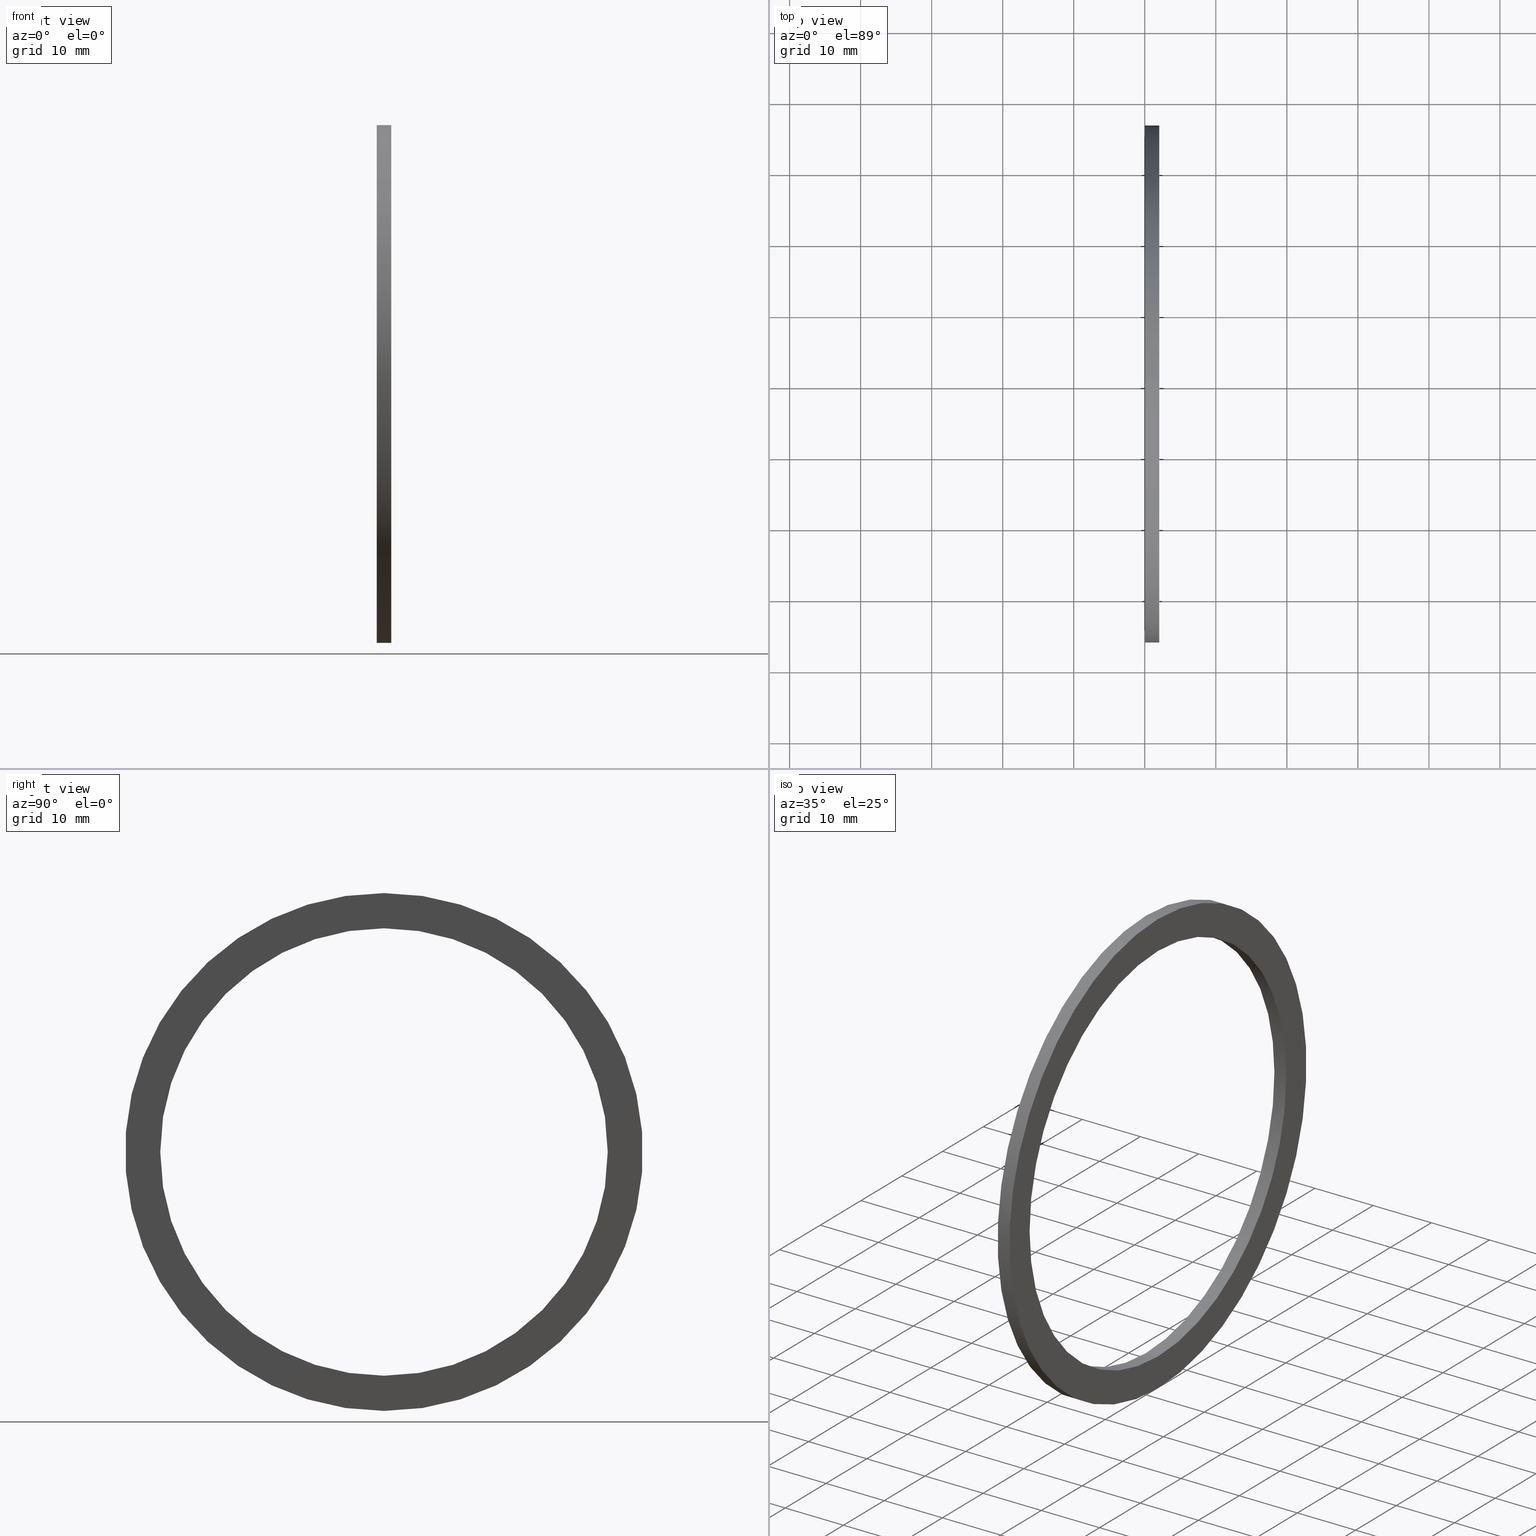
[diagram: canonical four-view strip — front | top / right | iso, engineering-drawing reading convention]
A machine part, canonical four-view strip (front | top / right | iso — engineering-drawing reading convention). The complete STEP part file that produces these views, byte-faithful:
ISO-10303-21;
HEADER;
FILE_DESCRIPTION (( 'STEP AP203' ),
    '1' );
FILE_NAME ('MS-63-NY.STEP',
    '2008-03-29T07:59:37',
    ( '' ),
    ( '' ),
    'SwSTEP 2.0',
    'SolidWorks 2007',
    '' );
FILE_SCHEMA (( 'CONFIG_CONTROL_DESIGN' ));
ENDSEC;

DATA;
#1 = EDGE_CURVE ( 'NONE', #12, #45, #117, .T. ) ;
#2 = ORIENTED_EDGE ( 'NONE', *, *, #50, .F. ) ;
#3 = ORIENTED_EDGE ( 'NONE', *, *, #1, .F. ) ;
#4 = ORIENTED_EDGE ( 'NONE', *, *, #52, .T. ) ;
#5 = CLOSED_SHELL ( 'NONE', ( #41, #13, #20, #51, #28, #26 ) ) ;
#6 = ORIENTED_EDGE ( 'NONE', *, *, #33, .T. ) ;
#7 = ORIENTED_EDGE ( 'NONE', *, *, #39, .F. ) ;
#8 = ORIENTED_EDGE ( 'NONE', *, *, #44, .T. ) ;
#9 = ORIENTED_EDGE ( 'NONE', *, *, #1, .T. ) ;
#10 = ORIENTED_EDGE ( 'NONE', *, *, #24, .F. ) ;
#11 = ORIENTED_EDGE ( 'NONE', *, *, #56, .T. ) ;
#12 = VERTEX_POINT ( 'NONE', #61 ) ;
#13 = ADVANCED_FACE ( 'NONE', ( #120 ), #90, .T. ) ;
#14 = EDGE_LOOP ( 'NONE', ( #40, #11, #38, #7 ) ) ;
#15 = MANIFOLD_SOLID_BREP ( 'NONE', #5 ) ;
#16 = VERTEX_POINT ( 'NONE', #146 ) ;
#17 = VERTEX_POINT ( 'NONE', #115 ) ;
#18 = EDGE_CURVE ( 'NONE', #16, #17, #88, .T. ) ;
#19 = EDGE_LOOP ( 'NONE', ( #8, #9 ) ) ;
#20 = ADVANCED_FACE ( 'NONE', ( #149, #110 ), #150, .T. ) ;
#21 = VERTEX_POINT ( 'NONE', #113 ) ;
#22 = VERTEX_POINT ( 'NONE', #118 ) ;
#23 = ORIENTED_EDGE ( 'NONE', *, *, #24, .T. ) ;
#24 = EDGE_CURVE ( 'NONE', #21, #57, #89, .T. ) ;
#25 = ORIENTED_EDGE ( 'NONE', *, *, #50, .T. ) ;
#26 = ADVANCED_FACE ( 'NONE', ( #85 ), #83, .F. ) ;
#27 = EDGE_LOOP ( 'NONE', ( #55, #34 ) ) ;
#28 = ADVANCED_FACE ( 'NONE', ( #141, #140 ), #71, .T. ) ;
#29 = EDGE_LOOP ( 'NONE', ( #53, #30, #47, #3 ) ) ;
#30 = ORIENTED_EDGE ( 'NONE', *, *, #54, .T. ) ;
#31 = EDGE_LOOP ( 'NONE', ( #25, #35 ) ) ;
#32 = ORIENTED_EDGE ( 'NONE', *, *, #33, .F. ) ;
#33 = EDGE_CURVE ( 'NONE', #22, #58, #106, .T. ) ;
#34 = ORIENTED_EDGE ( 'NONE', *, *, #54, .F. ) ;
#35 = ORIENTED_EDGE ( 'NONE', *, *, #43, .T. ) ;
#36 = ORIENTED_EDGE ( 'NONE', *, *, #60, .F. ) ;
#37 = EDGE_LOOP ( 'NONE', ( #42, #23, #59, #32 ) ) ;
#38 = ORIENTED_EDGE ( 'NONE', *, *, #44, .F. ) ;
#39 = EDGE_CURVE ( 'NONE', #16, #45, #137, .T. ) ;
#40 = ORIENTED_EDGE ( 'NONE', *, *, #18, .T. ) ;
#41 = ADVANCED_FACE ( 'NONE', ( #142 ), #82, .F. ) ;
#42 = ORIENTED_EDGE ( 'NONE', *, *, #43, .F. ) ;
#43 = EDGE_CURVE ( 'NONE', #21, #22, #77, .T. ) ;
#44 = EDGE_CURVE ( 'NONE', #45, #12, #101, .T. ) ;
#45 = VERTEX_POINT ( 'NONE', #97 ) ;
#46 = ORIENTED_EDGE ( 'NONE', *, *, #52, .F. ) ;
#47 = ORIENTED_EDGE ( 'NONE', *, *, #39, .T. ) ;
#48 = EDGE_LOOP ( 'NONE', ( #46, #36 ) ) ;
#49 = EDGE_LOOP ( 'NONE', ( #10, #2, #6, #4 ) ) ;
#50 = EDGE_CURVE ( 'NONE', #22, #21, #96, .T. ) ;
#51 = ADVANCED_FACE ( 'NONE', ( #127 ), #126, .T. ) ;
#52 = EDGE_CURVE ( 'NONE', #58, #57, #125, .T. ) ;
#53 = ORIENTED_EDGE ( 'NONE', *, *, #56, .F. ) ;
#54 = EDGE_CURVE ( 'NONE', #17, #16, #66, .T. ) ;
#55 = ORIENTED_EDGE ( 'NONE', *, *, #18, .F. ) ;
#56 = EDGE_CURVE ( 'NONE', #17, #12, #252, .T. ) ;
#57 = VERTEX_POINT ( 'NONE', #224 ) ;
#58 = VERTEX_POINT ( 'NONE', #186 ) ;
#59 = ORIENTED_EDGE ( 'NONE', *, *, #60, .T. ) ;
#60 = EDGE_CURVE ( 'NONE', #57, #58, #170, .T. ) ;
#61 = CARTESIAN_POINT ( 'NONE',  ( 0.0000000000000000000, 1.757368156776452000E-016, -1.435000000000000100 ) ) ;
#62 = DIRECTION ( 'NONE',  ( 0.0000000000000000000, 0.0000000000000000000, 1.000000000000000000 ) ) ;
#63 = DIRECTION ( 'NONE',  ( -1.000000000000000000, 0.0000000000000000000, 0.0000000000000000000 ) ) ;
#64 = CARTESIAN_POINT ( 'NONE',  ( 0.07999999999999996000, 0.0000000000000000000, 0.0000000000000000000 ) ) ;
#65 = AXIS2_PLACEMENT_3D ( 'NONE', #64, #63, #62 ) ;
#66 = CIRCLE ( 'NONE', #65, 1.435000000000000100 ) ;
#67 = DIRECTION ( 'NONE',  ( 0.0000000000000000000, 0.0000000000000000000, 1.000000000000000000 ) ) ;
#68 = DIRECTION ( 'NONE',  ( -1.000000000000000000, 0.0000000000000000000, 0.0000000000000000000 ) ) ;
#69 = CARTESIAN_POINT ( 'NONE',  ( 0.0000000000000000000, 0.0000000000000000000, 0.0000000000000000000 ) ) ;
#70 = AXIS2_PLACEMENT_3D ( 'NONE', #69, #68, #67 ) ;
#71 = PLANE ( 'NONE',  #105 ) ;
#72 = CARTESIAN_POINT ( 'NONE',  ( 0.08000000000000002900, -1.240000000000000000, 0.0000000000000000000 ) ) ;
#73 = DIRECTION ( 'NONE',  ( 0.0000000000000000000, 0.0000000000000000000, 1.000000000000000000 ) ) ;
#74 = DIRECTION ( 'NONE',  ( -1.000000000000000000, 0.0000000000000000000, 0.0000000000000000000 ) ) ;
#75 = CARTESIAN_POINT ( 'NONE',  ( 0.07999999999999996000, 0.0000000000000000000, 0.0000000000000000000 ) ) ;
#76 = AXIS2_PLACEMENT_3D ( 'NONE', #75, #74, #102 ) ;
#77 = CIRCLE ( 'NONE', #76, 1.240000000000000000 ) ;
#78 = CARTESIAN_POINT ( 'NONE',  ( 0.0000000000000000000, 0.0000000000000000000, 0.0000000000000000000 ) ) ;
#79 = DIRECTION ( 'NONE',  ( 0.0000000000000000000, 0.0000000000000000000, 1.000000000000000000 ) ) ;
#80 = DIRECTION ( 'NONE',  ( -1.000000000000000000, 0.0000000000000000000, 0.0000000000000000000 ) ) ;
#81 = AXIS2_PLACEMENT_3D ( 'NONE', #133, #80, #79 ) ;
#82 = CYLINDRICAL_SURFACE ( 'NONE', #81, 1.240000000000000000 ) ;
#83 = CYLINDRICAL_SURFACE ( 'NONE', #84, 1.240000000000000000 ) ;
#84 = AXIS2_PLACEMENT_3D ( 'NONE', #139, #138, #73 ) ;
#85 = FACE_OUTER_BOUND ( 'NONE', #49, .T. ) ;
#86 = DIRECTION ( 'NONE',  ( -1.000000000000000000, 0.0000000000000000000, 0.0000000000000000000 ) ) ;
#87 = AXIS2_PLACEMENT_3D ( 'NONE', #95, #94, #93 ) ;
#88 = CIRCLE ( 'NONE', #87, 1.435000000000000100 ) ;
#89 = LINE ( 'NONE', #92, #91 ) ;
#90 = CYLINDRICAL_SURFACE ( 'NONE', #114, 1.435000000000000100 ) ;
#91 = VECTOR ( 'NONE', #86, 39.37007874015748100 ) ;
#92 = CARTESIAN_POINT ( 'NONE',  ( -1.721125226614714300, 1.518562030942717800E-016, -1.240000000000000000 ) ) ;
#93 = DIRECTION ( 'NONE',  ( 0.0000000000000000000, 0.0000000000000000000, 1.000000000000000000 ) ) ;
#94 = DIRECTION ( 'NONE',  ( -1.000000000000000000, 0.0000000000000000000, 0.0000000000000000000 ) ) ;
#95 = CARTESIAN_POINT ( 'NONE',  ( 0.07999999999999996000, 0.0000000000000000000, 0.0000000000000000000 ) ) ;
#96 = CIRCLE ( 'NONE', #131, 1.240000000000000000 ) ;
#97 = CARTESIAN_POINT ( 'NONE',  ( 0.0000000000000000000, 0.0000000000000000000, 1.435000000000000100 ) ) ;
#98 = DIRECTION ( 'NONE',  ( 0.0000000000000000000, 0.0000000000000000000, 1.000000000000000000 ) ) ;
#99 = DIRECTION ( 'NONE',  ( -1.000000000000000000, 0.0000000000000000000, 0.0000000000000000000 ) ) ;
#100 = AXIS2_PLACEMENT_3D ( 'NONE', #78, #99, #98 ) ;
#101 = CIRCLE ( 'NONE', #100, 1.435000000000000100 ) ;
#102 = DIRECTION ( 'NONE',  ( 0.0000000000000000000, 0.0000000000000000000, 1.000000000000000000 ) ) ;
#103 = DIRECTION ( 'NONE',  ( 0.0000000000000000000, 0.0000000000000000000, -1.000000000000000000 ) ) ;
#104 = DIRECTION ( 'NONE',  ( 1.000000000000000000, 0.0000000000000000000, 0.0000000000000000000 ) ) ;
#105 = AXIS2_PLACEMENT_3D ( 'NONE', #72, #104, #103 ) ;
#106 = LINE ( 'NONE', #145, #144 ) ;
#107 = DIRECTION ( 'NONE',  ( -1.000000000000000000, 0.0000000000000000000, 0.0000000000000000000 ) ) ;
#108 = CARTESIAN_POINT ( 'NONE',  ( -1.721125226614714300, 0.0000000000000000000, 0.0000000000000000000 ) ) ;
#109 = AXIS2_PLACEMENT_3D ( 'NONE', #112, #111, #119 ) ;
#110 = FACE_BOUND ( 'NONE', #48, .T. ) ;
#111 = DIRECTION ( 'NONE',  ( -1.000000000000000000, 0.0000000000000000000, 0.0000000000000000000 ) ) ;
#112 = CARTESIAN_POINT ( 'NONE',  ( 4.316737397223879900E-017, -1.240000000000000000, 0.0000000000000000000 ) ) ;
#113 = CARTESIAN_POINT ( 'NONE',  ( 0.07999999999999996000, 1.518562030942717800E-016, -1.240000000000000000 ) ) ;
#114 = AXIS2_PLACEMENT_3D ( 'NONE', #108, #107, #147 ) ;
#115 = CARTESIAN_POINT ( 'NONE',  ( 0.07999999999999996000, 1.757368156776452000E-016, -1.435000000000000100 ) ) ;
#116 = AXIS2_PLACEMENT_3D ( 'NONE', #132, #151, #148 ) ;
#117 = CIRCLE ( 'NONE', #116, 1.435000000000000100 ) ;
#118 = CARTESIAN_POINT ( 'NONE',  ( 0.07999999999999996000, 0.0000000000000000000, 1.240000000000000000 ) ) ;
#119 = DIRECTION ( 'NONE',  ( 0.0000000000000000000, 0.0000000000000000000, 1.000000000000000000 ) ) ;
#120 = FACE_OUTER_BOUND ( 'NONE', #14, .T. ) ;
#121 = DIRECTION ( 'NONE',  ( 0.0000000000000000000, 0.0000000000000000000, 1.000000000000000000 ) ) ;
#122 = DIRECTION ( 'NONE',  ( -1.000000000000000000, 0.0000000000000000000, 0.0000000000000000000 ) ) ;
#123 = CARTESIAN_POINT ( 'NONE',  ( -1.721125226614714300, 0.0000000000000000000, 0.0000000000000000000 ) ) ;
#124 = AXIS2_PLACEMENT_3D ( 'NONE', #123, #122, #121 ) ;
#125 = CIRCLE ( 'NONE', #70, 1.240000000000000000 ) ;
#126 = CYLINDRICAL_SURFACE ( 'NONE', #124, 1.435000000000000100 ) ;
#127 = FACE_OUTER_BOUND ( 'NONE', #29, .T. ) ;
#128 = DIRECTION ( 'NONE',  ( 0.0000000000000000000, 0.0000000000000000000, 1.000000000000000000 ) ) ;
#129 = DIRECTION ( 'NONE',  ( -1.000000000000000000, 0.0000000000000000000, 0.0000000000000000000 ) ) ;
#130 = CARTESIAN_POINT ( 'NONE',  ( 0.07999999999999996000, 0.0000000000000000000, 0.0000000000000000000 ) ) ;
#131 = AXIS2_PLACEMENT_3D ( 'NONE', #130, #129, #128 ) ;
#132 = CARTESIAN_POINT ( 'NONE',  ( 0.0000000000000000000, 0.0000000000000000000, 0.0000000000000000000 ) ) ;
#133 = CARTESIAN_POINT ( 'NONE',  ( -1.721125226614714300, 0.0000000000000000000, 0.0000000000000000000 ) ) ;
#134 = DIRECTION ( 'NONE',  ( -1.000000000000000000, 0.0000000000000000000, 0.0000000000000000000 ) ) ;
#135 = VECTOR ( 'NONE', #134, 39.37007874015748100 ) ;
#136 = CARTESIAN_POINT ( 'NONE',  ( -1.721125226614714300, 0.0000000000000000000, 1.435000000000000100 ) ) ;
#137 = LINE ( 'NONE', #136, #135 ) ;
#138 = DIRECTION ( 'NONE',  ( -1.000000000000000000, 0.0000000000000000000, 0.0000000000000000000 ) ) ;
#139 = CARTESIAN_POINT ( 'NONE',  ( -1.721125226614714300, 0.0000000000000000000, 0.0000000000000000000 ) ) ;
#140 = FACE_OUTER_BOUND ( 'NONE', #27, .T. ) ;
#141 = FACE_BOUND ( 'NONE', #31, .T. ) ;
#142 = FACE_OUTER_BOUND ( 'NONE', #37, .T. ) ;
#143 = DIRECTION ( 'NONE',  ( -1.000000000000000000, 0.0000000000000000000, 0.0000000000000000000 ) ) ;
#144 = VECTOR ( 'NONE', #143, 39.37007874015748100 ) ;
#145 = CARTESIAN_POINT ( 'NONE',  ( -1.721125226614714300, 0.0000000000000000000, 1.240000000000000000 ) ) ;
#146 = CARTESIAN_POINT ( 'NONE',  ( 0.07999999999999996000, 0.0000000000000000000, 1.435000000000000100 ) ) ;
#147 = DIRECTION ( 'NONE',  ( 0.0000000000000000000, 0.0000000000000000000, 1.000000000000000000 ) ) ;
#148 = DIRECTION ( 'NONE',  ( 0.0000000000000000000, 0.0000000000000000000, 1.000000000000000000 ) ) ;
#149 = FACE_OUTER_BOUND ( 'NONE', #19, .T. ) ;
#150 = PLANE ( 'NONE',  #109 ) ;
#151 = DIRECTION ( 'NONE',  ( -1.000000000000000000, 0.0000000000000000000, 0.0000000000000000000 ) ) ;
#152 =( CONVERSION_BASED_UNIT ( 'INCH', #245 ) LENGTH_UNIT ( ) NAMED_UNIT ( #168 ) );
#153 = DIRECTION ( 'NONE',  ( 0.0000000000000000000, 0.0000000000000000000, 1.000000000000000000 ) ) ;
#154 = DIRECTION ( 'NONE',  ( -1.000000000000000000, 0.0000000000000000000, 0.0000000000000000000 ) ) ;
#155 = LOCAL_TIME ( 13, 29, 37.00000000000000000, #156 ) ;
#156 = COORDINATED_UNIVERSAL_TIME_OFFSET ( 5, 30, .AHEAD. ) ;
#157 = APPROVAL_PERSON_ORGANIZATION ( #161, #159, #158 ) ;
#158 = APPROVAL_ROLE ( '' ) ;
#159 = APPROVAL ( #160, 'UNSPECIFIED' ) ;
#160 = APPROVAL_STATUS ( 'not_yet_approved' ) ;
#161 = PERSON_AND_ORGANIZATION ( #166, #165 ) ;
#162 = PRODUCT_DEFINITION ( 'UNKNOWN', '', #172, #208 ) ;
#163 = PERSON_AND_ORGANIZATION_ROLE ( 'design_owner' ) ;
#164 = PERSON_AND_ORGANIZATION ( #166, #165 ) ;
#165 = ORGANIZATION ( 'UNSPECIFIED', 'UNSPECIFIED', '' ) ;
#166 = PERSON ( 'UNSPECIFIED', 'UNSPECIFIED', 'UNSPECIFIED', ('UNSPECIFIED'), ('UNSPECIFIED'), ('UNSPECIFIED') ) ;
#167 = CARTESIAN_POINT ( 'NONE',  ( 0.0000000000000000000, 0.0000000000000000000, 0.0000000000000000000 ) ) ;
#168 = DIMENSIONAL_EXPONENTS ( 1.000000000000000000, 0.0000000000000000000, 0.0000000000000000000, 0.0000000000000000000, 0.0000000000000000000, 0.0000000000000000000, 0.0000000000000000000 ) ;
#169 = AXIS2_PLACEMENT_3D ( 'NONE', #182, #154, #153 ) ;
#170 = CIRCLE ( 'NONE', #169, 1.240000000000000000 ) ;
#171 = VECTOR ( 'NONE', #187, 39.37007874015748100 ) ;
#172 = PRODUCT_DEFINITION_FORMATION_WITH_SPECIFIED_SOURCE ( 'ANY', '', #240, .NOT_KNOWN. ) ;
#173 = CC_DESIGN_DATE_AND_TIME_ASSIGNMENT ( #228, #174, ( #162 ) ) ;
#174 = DATE_TIME_ROLE ( 'creation_date' ) ;
#175 = CALENDAR_DATE ( 2008, 29, 3 ) ;
#176 =( NAMED_UNIT ( * ) PLANE_ANGLE_UNIT ( ) SI_UNIT ( $, .RADIAN. ) );
#177 = PERSON_AND_ORGANIZATION ( #166, #165 ) ;
#178 = CC_DESIGN_APPROVAL ( #159, ( #162 ) ) ;
#179 = APPROVAL_DATE_TIME ( #180, #159 ) ;
#180 = DATE_AND_TIME ( #181, #155 ) ;
#181 = CALENDAR_DATE ( 2008, 29, 3 ) ;
#182 = CARTESIAN_POINT ( 'NONE',  ( 0.0000000000000000000, 0.0000000000000000000, 0.0000000000000000000 ) ) ;
#183 = CARTESIAN_POINT ( 'NONE',  ( -1.721125226614714300, 1.757368156776452000E-016, -1.435000000000000100 ) ) ;
#184 = SHAPE_DEFINITION_REPRESENTATION ( #226, #246 ) ;
#185 = DIRECTION ( 'NONE',  ( 1.000000000000000000, 0.0000000000000000000, 0.0000000000000000000 ) ) ;
#186 = CARTESIAN_POINT ( 'NONE',  ( 0.0000000000000000000, 0.0000000000000000000, 1.240000000000000000 ) ) ;
#187 = DIRECTION ( 'NONE',  ( -1.000000000000000000, 0.0000000000000000000, 0.0000000000000000000 ) ) ;
#188 = AXIS2_PLACEMENT_3D ( 'NONE', #167, #222, #185 ) ;
#189 = CC_DESIGN_SECURITY_CLASSIFICATION ( #249, ( #172 ) ) ;
#190 = CC_DESIGN_APPROVAL ( #198, ( #249 ) ) ;
#191 = APPROVAL_DATE_TIME ( #192, #198 ) ;
#192 = DATE_AND_TIME ( #193, #194 ) ;
#193 = CALENDAR_DATE ( 2008, 29, 3 ) ;
#194 = LOCAL_TIME ( 13, 29, 37.00000000000000000, #195 ) ;
#195 = COORDINATED_UNIVERSAL_TIME_OFFSET ( 5, 30, .AHEAD. ) ;
#196 = APPROVAL_PERSON_ORGANIZATION ( #200, #198, #197 ) ;
#197 = APPROVAL_ROLE ( '' ) ;
#198 = APPROVAL ( #199, 'UNSPECIFIED' ) ;
#199 = APPROVAL_STATUS ( 'not_yet_approved' ) ;
#200 = PERSON_AND_ORGANIZATION ( #166, #165 ) ;
#201 = CC_DESIGN_DATE_AND_TIME_ASSIGNMENT ( #203, #202, ( #249 ) ) ;
#202 = DATE_TIME_ROLE ( 'classification_date' ) ;
#203 = DATE_AND_TIME ( #204, #205 ) ;
#204 = CALENDAR_DATE ( 2008, 29, 3 ) ;
#205 = LOCAL_TIME ( 13, 29, 37.00000000000000000, #206 ) ;
#206 = COORDINATED_UNIVERSAL_TIME_OFFSET ( 5, 30, .AHEAD. ) ;
#207 = CC_DESIGN_PERSON_AND_ORGANIZATION_ASSIGNMENT ( #248, #247, ( #249 ) ) ;
#208 = DESIGN_CONTEXT ( 'detailed design', #210, 'design' ) ;
#209 = APPLICATION_PROTOCOL_DEFINITION ( 'international standard', 'config_control_design', 1994, #210 ) ;
#210 = APPLICATION_CONTEXT ( 'configuration controlled 3d designs of mechanical parts and assemblies' ) ;
#211 = CC_DESIGN_PERSON_AND_ORGANIZATION_ASSIGNMENT ( #164, #163, ( #240 ) ) ;
#212 = APPROVAL_DATE_TIME ( #213, #219 ) ;
#213 = DATE_AND_TIME ( #214, #215 ) ;
#214 = CALENDAR_DATE ( 2008, 29, 3 ) ;
#215 = LOCAL_TIME ( 13, 29, 37.00000000000000000, #216 ) ;
#216 = COORDINATED_UNIVERSAL_TIME_OFFSET ( 5, 30, .AHEAD. ) ;
#217 = APPROVAL_PERSON_ORGANIZATION ( #221, #219, #218 ) ;
#218 = APPROVAL_ROLE ( '' ) ;
#219 = APPROVAL ( #220, 'UNSPECIFIED' ) ;
#220 = APPROVAL_STATUS ( 'not_yet_approved' ) ;
#221 = PERSON_AND_ORGANIZATION ( #166, #165 ) ;
#222 = DIRECTION ( 'NONE',  ( 0.0000000000000000000, 0.0000000000000000000, 1.000000000000000000 ) ) ;
#223 =( LENGTH_UNIT ( ) NAMED_UNIT ( * ) SI_UNIT ( $, .METRE. ) );
#224 = CARTESIAN_POINT ( 'NONE',  ( 0.0000000000000000000, 1.518562030942717800E-016, -1.240000000000000000 ) ) ;
#225 =( GEOMETRIC_REPRESENTATION_CONTEXT ( 3 ) GLOBAL_UNCERTAINTY_ASSIGNED_CONTEXT ( ( #244 ) ) GLOBAL_UNIT_ASSIGNED_CONTEXT ( ( #152, #176, #239 ) ) REPRESENTATION_CONTEXT ( 'NONE', 'WORKASPACE' ) );
#226 = PRODUCT_DEFINITION_SHAPE ( 'NONE', 'NONE',  #162 ) ;
#227 = PRODUCT_RELATED_PRODUCT_CATEGORY ( 'detail', '', ( #240 ) ) ;
#228 = DATE_AND_TIME ( #175, #229 ) ;
#229 = LOCAL_TIME ( 13, 29, 37.00000000000000000, #230 ) ;
#230 = COORDINATED_UNIVERSAL_TIME_OFFSET ( 5, 30, .AHEAD. ) ;
#231 = CC_DESIGN_PERSON_AND_ORGANIZATION_ASSIGNMENT ( #177, #232, ( #162 ) ) ;
#232 = PERSON_AND_ORGANIZATION_ROLE ( 'creator' ) ;
#233 = PERSON_AND_ORGANIZATION_ROLE ( 'design_supplier' ) ;
#234 = PERSON_AND_ORGANIZATION ( #166, #165 ) ;
#235 = CC_DESIGN_PERSON_AND_ORGANIZATION_ASSIGNMENT ( #237, #236, ( #172 ) ) ;
#236 = PERSON_AND_ORGANIZATION_ROLE ( 'creator' ) ;
#237 = PERSON_AND_ORGANIZATION ( #166, #165 ) ;
#238 = CC_DESIGN_APPROVAL ( #219, ( #172 ) ) ;
#239 =( NAMED_UNIT ( * ) SI_UNIT ( $, .STERADIAN. ) SOLID_ANGLE_UNIT ( ) );
#240 = PRODUCT ( 'MS-63-NY', 'MS-63-NY', '', ( #241 ) ) ;
#241 = MECHANICAL_CONTEXT ( 'NONE', #243, 'mechanical' ) ;
#242 = APPLICATION_PROTOCOL_DEFINITION ( 'international standard', 'config_control_design', 1994, #243 ) ;
#243 = APPLICATION_CONTEXT ( 'configuration controlled 3d designs of mechanical parts and assemblies' ) ;
#244 = UNCERTAINTY_MEASURE_WITH_UNIT (LENGTH_MEASURE( 1.000000000000000100E-005 ), #152, 'distance_accuracy_value', 'NONE');
#245 = LENGTH_MEASURE_WITH_UNIT ( LENGTH_MEASURE( 0.02539999999999999900 ), #223 );
#246 = ADVANCED_BREP_SHAPE_REPRESENTATION ( 'MS-63-NY', ( #15, #188 ), #225 ) ;
#247 = PERSON_AND_ORGANIZATION_ROLE ( 'classification_officer' ) ;
#248 = PERSON_AND_ORGANIZATION ( #166, #165 ) ;
#249 = SECURITY_CLASSIFICATION ( '', '', #250 ) ;
#250 = SECURITY_CLASSIFICATION_LEVEL ( 'unclassified' ) ;
#251 = CC_DESIGN_PERSON_AND_ORGANIZATION_ASSIGNMENT ( #234, #233, ( #172 ) ) ;
#252 = LINE ( 'NONE', #183, #171 ) ;
ENDSEC;
END-ISO-10303-21;
